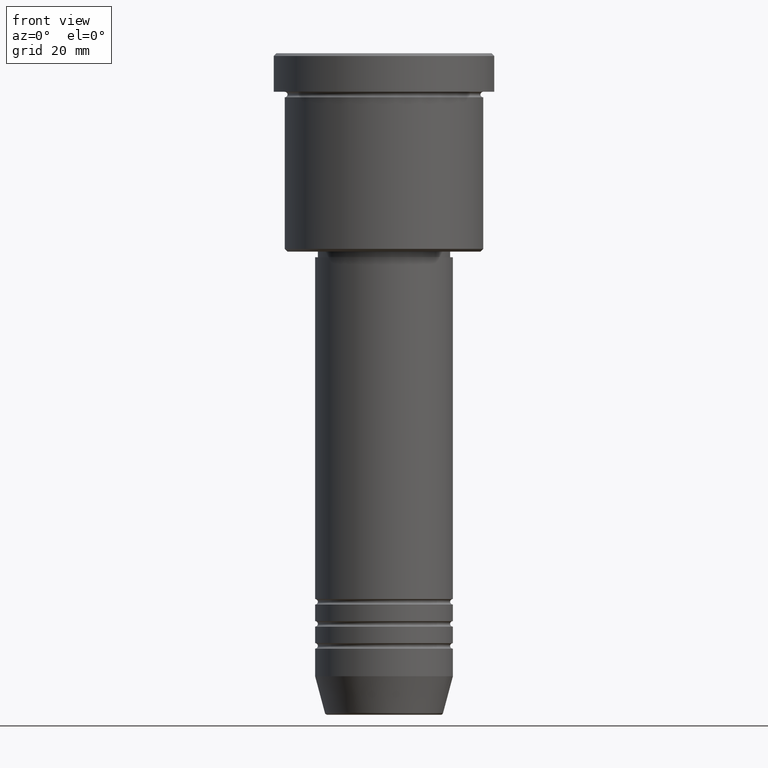
[diagram: clean part render]
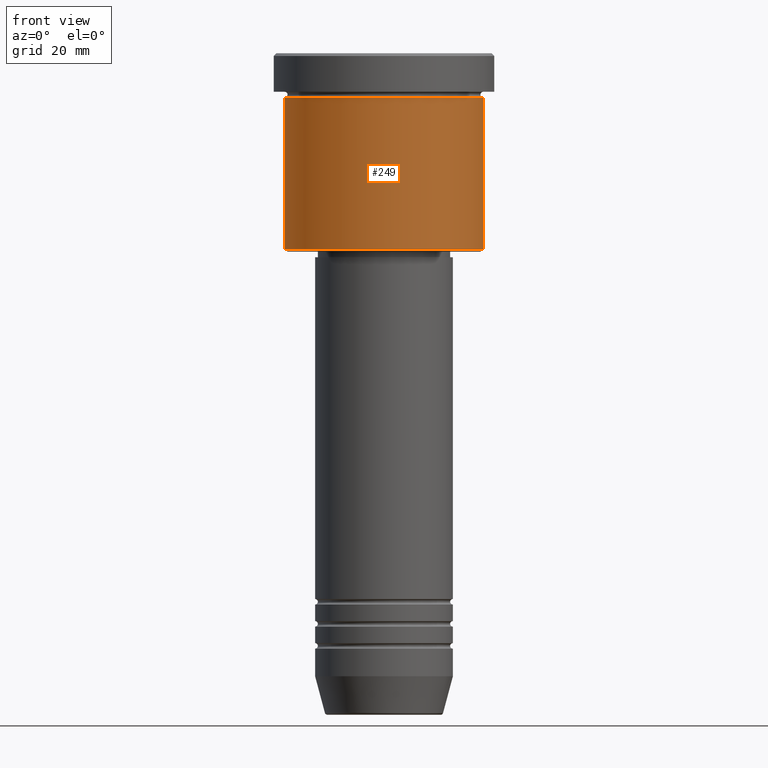
[diagram: same view with one face highlighted and labeled with its STEP entity id]
A machine part, front view. The second image highlights one B-rep face of the part: STEP entity #249.
In plain terms, the highlighted cylindrical surface (partial cylindrical patch) has radius 18 mm, axis along (-0, -0, 1).
Its self-contained STEP definition (entity closure, byte-faithful):
#6 = VECTOR ( 'NONE', #1032, 1000.000000000000000 ) ;
#16 = CYLINDRICAL_SURFACE ( 'NONE', #936, 18.00000000000000000 ) ;
#20 = CARTESIAN_POINT ( 'NONE',  ( -18.00000000000000000, 2.204364238465235428E-15, -35.50000000000001421 ) ) ;
#92 = CARTESIAN_POINT ( 'NONE',  ( 0.000000000000000000, 0.000000000000000000, -35.50000000000001421 ) ) ;
#139 = AXIS2_PLACEMENT_3D ( 'NONE', #625, #992, #176 ) ;
#163 = ORIENTED_EDGE ( 'NONE', *, *, #1091, .F. ) ;
#176 = DIRECTION ( 'NONE',  ( 1.000000000000000000, 0.000000000000000000, 0.000000000000000000 ) ) ;
#179 = EDGE_CURVE ( 'NONE', #888, #441, #1015, .T. ) ;
#202 = CARTESIAN_POINT ( 'NONE',  ( -18.00000000000000000, 2.204364238465235428E-15, 0.000000000000000000 ) ) ;
#241 = DIRECTION ( 'NONE',  ( -0.000000000000000000, -0.000000000000000000, 1.000000000000000000 ) ) ;
#249 = ADVANCED_FACE ( 'NONE', ( #733 ), #16, .T. ) ;
#303 = CARTESIAN_POINT ( 'NONE',  ( 18.00000000000000000, 0.000000000000000000, 0.000000000000000000 ) ) ;
#318 = ORIENTED_EDGE ( 'NONE', *, *, #373, .F. ) ;
#326 = ORIENTED_EDGE ( 'NONE', *, *, #415, .T. ) ;
#340 = DIRECTION ( 'NONE',  ( 1.000000000000000000, 0.000000000000000000, 0.000000000000000000 ) ) ;
#356 = DIRECTION ( 'NONE',  ( -1.000000000000000000, 0.000000000000000000, 0.000000000000000000 ) ) ;
#373 = EDGE_CURVE ( 'NONE', #888, #438, #651, .T. ) ;
#387 = CARTESIAN_POINT ( 'NONE',  ( 18.00000000000000000, 0.000000000000000000, -35.50000000000001421 ) ) ;
#415 = EDGE_CURVE ( 'NONE', #441, #1121, #680, .T. ) ;
#438 = VERTEX_POINT ( 'NONE', #663 ) ;
#441 = VERTEX_POINT ( 'NONE', #387 ) ;
#476 = CARTESIAN_POINT ( 'NONE',  ( 18.00000000000000000, 0.000000000000000000, -7.999999999999996447 ) ) ;
#529 = DIRECTION ( 'NONE',  ( -0.000000000000000000, -0.000000000000000000, 1.000000000000000000 ) ) ;
#553 = DIRECTION ( 'NONE',  ( -0.000000000000000000, -0.000000000000000000, 1.000000000000000000 ) ) ;
#590 = CARTESIAN_POINT ( 'NONE',  ( 0.000000000000000000, 0.000000000000000000, 0.000000000000000000 ) ) ;
#625 = CARTESIAN_POINT ( 'NONE',  ( 0.000000000000000000, 0.000000000000000000, -7.999999999999996447 ) ) ;
#626 = AXIS2_PLACEMENT_3D ( 'NONE', #92, #529, #356 ) ;
#651 = LINE ( 'NONE', #202, #1171 ) ;
#663 = CARTESIAN_POINT ( 'NONE',  ( -18.00000000000000000, 2.204364238465235428E-15, -7.999999999999996447 ) ) ;
#680 = LINE ( 'NONE', #303, #6 ) ;
#733 = FACE_OUTER_BOUND ( 'NONE', #951, .T. ) ;
#888 = VERTEX_POINT ( 'NONE', #20 ) ;
#894 = ORIENTED_EDGE ( 'NONE', *, *, #179, .T. ) ;
#936 = AXIS2_PLACEMENT_3D ( 'NONE', #590, #241, #340 ) ;
#951 = EDGE_LOOP ( 'NONE', ( #318, #894, #326, #163 ) ) ;
#992 = DIRECTION ( 'NONE',  ( -0.000000000000000000, -0.000000000000000000, 1.000000000000000000 ) ) ;
#1015 = CIRCLE ( 'NONE', #626, 18.00000000000000000 ) ;
#1020 = CIRCLE ( 'NONE', #139, 18.00000000000000000 ) ;
#1032 = DIRECTION ( 'NONE',  ( -0.000000000000000000, -0.000000000000000000, 1.000000000000000000 ) ) ;
#1091 = EDGE_CURVE ( 'NONE', #438, #1121, #1020, .T. ) ;
#1121 = VERTEX_POINT ( 'NONE', #476 ) ;
#1171 = VECTOR ( 'NONE', #553, 1000.000000000000000 ) ;